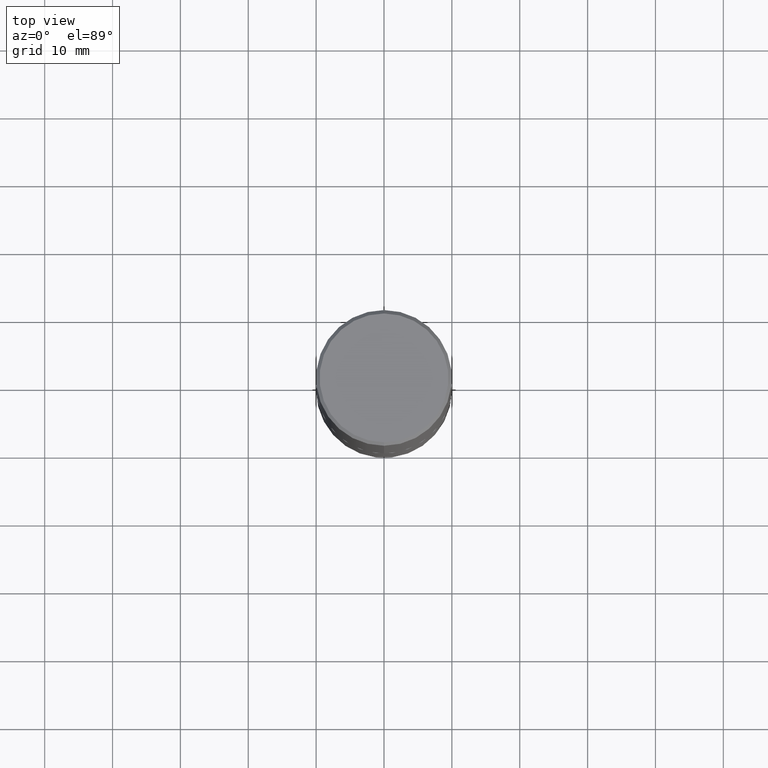
[diagram: clean part render]
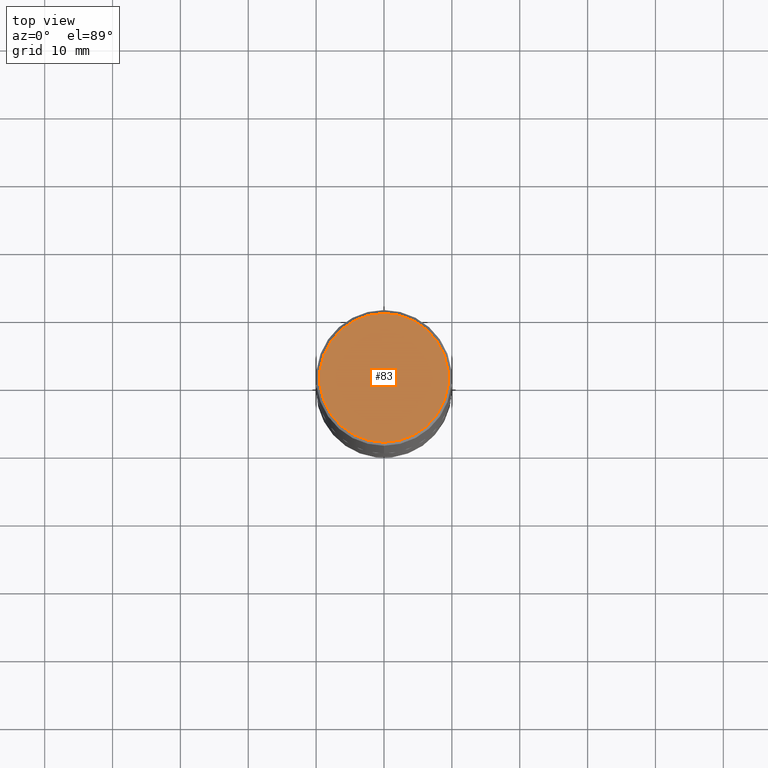
[diagram: same view with one face highlighted and labeled with its STEP entity id]
A machine part, top view. The second image highlights one B-rep face of the part: STEP entity #83.
In plain terms, the highlighted planar face has unit normal (0, -0, -1).
Its self-contained STEP definition (entity closure, byte-faithful):
#20 = VERTEX_POINT ( 'NONE', #337 ) ;
#68 = VERTEX_POINT ( 'NONE', #369 ) ;
#70 = AXIS2_PLACEMENT_3D ( 'NONE', #81, #214, #340 ) ;
#81 = CARTESIAN_POINT ( 'NONE',  ( -5.435989073177143407E-45, 7.765812006536082056E-31, 2.223548569614494101E-16 ) ) ;
#83 = ADVANCED_FACE ( 'NONE', ( #412 ), #229, .F. ) ;
#128 = CARTESIAN_POINT ( 'NONE',  ( -5.435989073177143407E-45, 7.765812006536082056E-31, 2.223548569614494101E-16 ) ) ;
#143 = AXIS2_PLACEMENT_3D ( 'NONE', #128, #259, #387 ) ;
#195 = DIRECTION ( 'NONE',  ( 2.444735926825112088E-29, -3.492530863799602802E-15, -1.000000000000000000 ) ) ;
#199 = DIRECTION ( 'NONE',  ( 6.982962677686265922E-15, 1.000000000000000000, -3.492530863799602802E-15 ) ) ;
#201 = AXIS2_PLACEMENT_3D ( 'NONE', #353, #195, #199 ) ;
#203 = EDGE_LOOP ( 'NONE', ( #282, #390 ) ) ;
#214 = DIRECTION ( 'NONE',  ( -2.444735926825112369E-29, 3.492530863799602802E-15, 1.000000000000000000 ) ) ;
#229 = PLANE ( 'NONE',  #201 ) ;
#232 = EDGE_CURVE ( 'NONE', #20, #68, #403, .T. ) ;
#259 = DIRECTION ( 'NONE',  ( -2.444735926825112369E-29, 3.492530863799602802E-15, 1.000000000000000000 ) ) ;
#282 = ORIENTED_EDGE ( 'NONE', *, *, #232, .T. ) ;
#302 = CIRCLE ( 'NONE', #70, 0.3736999999999997546 ) ;
#337 = CARTESIAN_POINT ( 'NONE',  ( 2.679362779428219524E-15, 0.3736999999999997546, -1.082803926840461447E-15 ) ) ;
#340 = DIRECTION ( 'NONE',  ( -6.982962677686265922E-15, -1.000000000000000000, 3.492530863799602802E-15 ) ) ;
#353 = CARTESIAN_POINT ( 'NONE',  ( 2.609533152651355831E-15, 0.3736999999999997546, -1.193981355321185980E-15 ) ) ;
#369 = CARTESIAN_POINT ( 'NONE',  ( -2.632373081744935132E-15, -0.3736999999999997546, 1.527513640763360169E-15 ) ) ;
#386 = EDGE_CURVE ( 'NONE', #68, #20, #302, .T. ) ;
#387 = DIRECTION ( 'NONE',  ( -6.982962677686265922E-15, -1.000000000000000000, 3.492530863799602802E-15 ) ) ;
#390 = ORIENTED_EDGE ( 'NONE', *, *, #386, .T. ) ;
#403 = CIRCLE ( 'NONE', #143, 0.3736999999999997546 ) ;
#412 = FACE_OUTER_BOUND ( 'NONE', #203, .T. ) ;